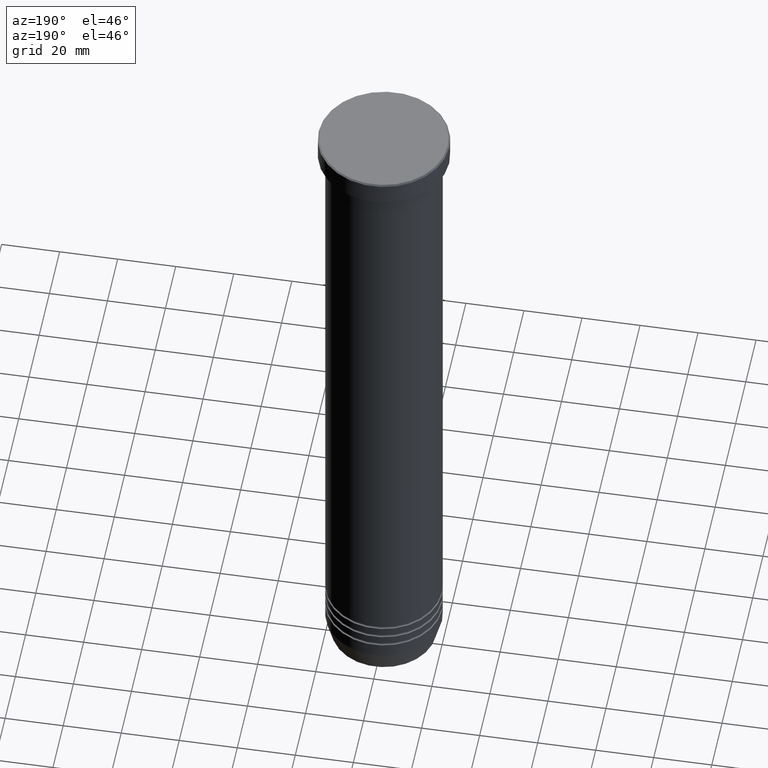
[diagram: clean part render]
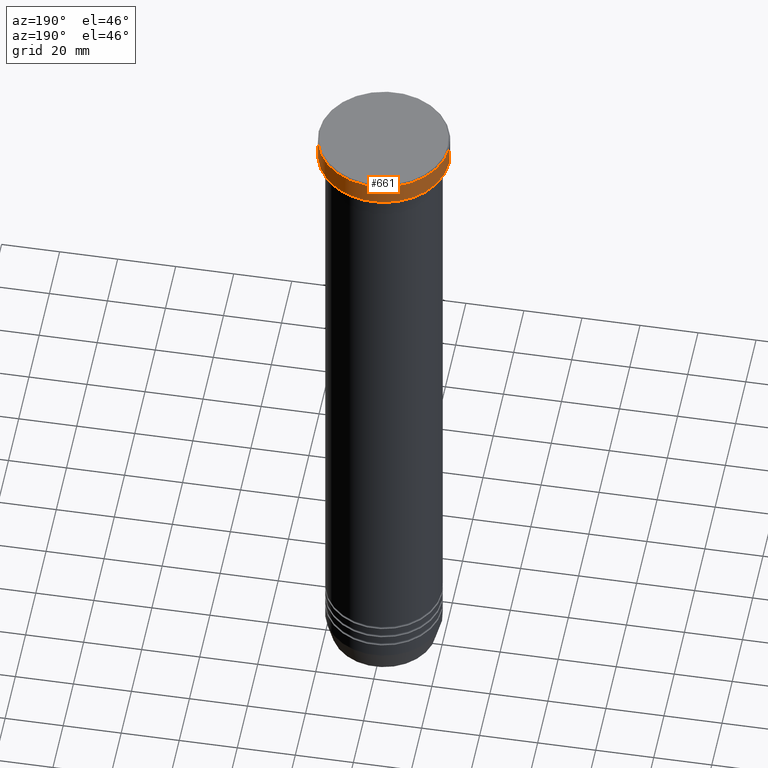
[diagram: same view with one face highlighted and labeled with its STEP entity id]
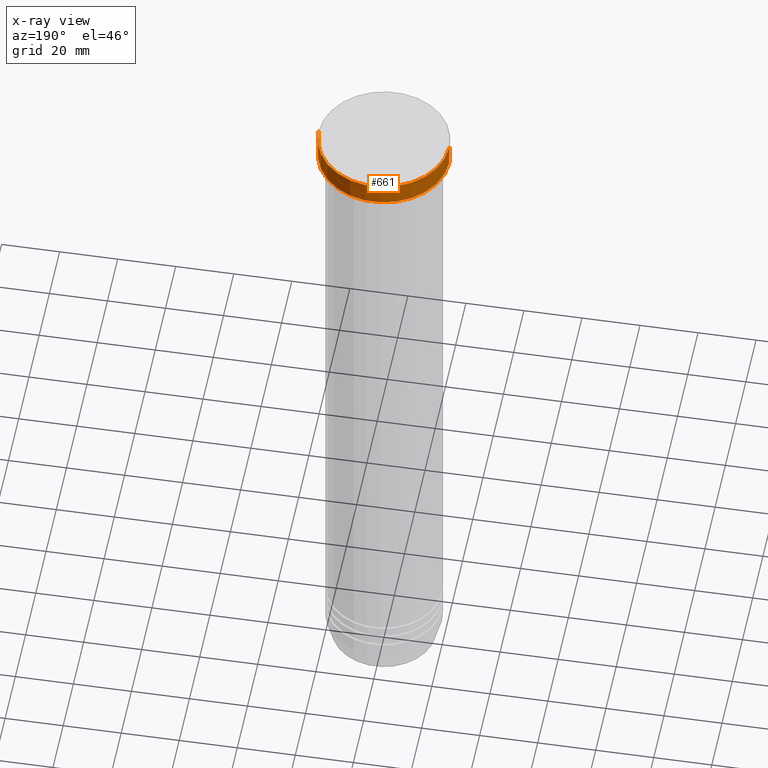
[diagram: x-ray of the same camera — body ghosted, the highlighted face saturated]
A machine part, auxiliary view. The second image highlights one B-rep face of the part: STEP entity #661.
The next image is the same camera in x-ray: the body ghosted, the highlighted face saturated — about 0% of this face is hidden behind the body in this view.
In plain terms, the highlighted cylindrical surface (partial cylindrical patch) has radius 22.5 mm, axis along (-0, -0, 1).
Its self-contained STEP definition (entity closure, byte-faithful):
#17 = ORIENTED_EDGE ( 'NONE', *, *, #627, .T. ) ;
#26 = CIRCLE ( 'NONE', #1058, 22.50000000000000000 ) ;
#33 = ORIENTED_EDGE ( 'NONE', *, *, #365, .F. ) ;
#120 = VERTEX_POINT ( 'NONE', #663 ) ;
#128 = DIRECTION ( 'NONE',  ( -0.000000000000000000, -0.000000000000000000, 1.000000000000000000 ) ) ;
#149 = DIRECTION ( 'NONE',  ( -0.000000000000000000, -0.000000000000000000, 1.000000000000000000 ) ) ;
#152 = EDGE_LOOP ( 'NONE', ( #722, #589, #17, #33 ) ) ;
#195 = LINE ( 'NONE', #291, #944 ) ;
#215 = CARTESIAN_POINT ( 'NONE',  ( -22.50000000000000000, 2.755455298081544778E-15, 0.000000000000000000 ) ) ;
#217 = CARTESIAN_POINT ( 'NONE',  ( 0.000000000000000000, 0.000000000000000000, 0.000000000000000000 ) ) ;
#224 = CARTESIAN_POINT ( 'NONE',  ( 22.50000000000000000, 0.000000000000000000, -7.999999999999998224 ) ) ;
#232 = EDGE_CURVE ( 'NONE', #723, #120, #484, .T. ) ;
#248 = VERTEX_POINT ( 'NONE', #925 ) ;
#272 = DIRECTION ( 'NONE',  ( 1.000000000000000000, 0.000000000000000000, 0.000000000000000000 ) ) ;
#291 = CARTESIAN_POINT ( 'NONE',  ( 22.50000000000000000, 0.000000000000000000, 0.000000000000000000 ) ) ;
#357 = VERTEX_POINT ( 'NONE', #599 ) ;
#365 = EDGE_CURVE ( 'NONE', #723, #357, #195, .T. ) ;
#368 = LINE ( 'NONE', #215, #370 ) ;
#370 = VECTOR ( 'NONE', #128, 1000.000000000000000 ) ;
#484 = CIRCLE ( 'NONE', #798, 22.50000000000000000 ) ;
#507 = DIRECTION ( 'NONE',  ( 0.000000000000000000, 0.000000000000000000, -1.000000000000000000 ) ) ;
#529 = EDGE_CURVE ( 'NONE', #120, #248, #368, .T. ) ;
#544 = DIRECTION ( 'NONE',  ( 1.000000000000000000, 0.000000000000000000, 0.000000000000000000 ) ) ;
#570 = CARTESIAN_POINT ( 'NONE',  ( 0.000000000000000000, 0.000000000000000000, -7.999999999999998224 ) ) ;
#589 = ORIENTED_EDGE ( 'NONE', *, *, #529, .T. ) ;
#592 = CARTESIAN_POINT ( 'NONE',  ( 0.000000000000000000, 0.000000000000000000, -0.5000000000000004441 ) ) ;
#599 = CARTESIAN_POINT ( 'NONE',  ( 22.50000000000000000, 0.000000000000000000, -0.5000000000000004441 ) ) ;
#623 = CYLINDRICAL_SURFACE ( 'NONE', #990, 22.50000000000000000 ) ;
#627 = EDGE_CURVE ( 'NONE', #248, #357, #26, .T. ) ;
#661 = ADVANCED_FACE ( 'NONE', ( #789 ), #623, .T. ) ;
#663 = CARTESIAN_POINT ( 'NONE',  ( -22.50000000000000000, 2.755455298081544778E-15, -7.999999999999998224 ) ) ;
#706 = DIRECTION ( 'NONE',  ( -0.000000000000000000, -0.000000000000000000, 1.000000000000000000 ) ) ;
#722 = ORIENTED_EDGE ( 'NONE', *, *, #232, .T. ) ;
#723 = VERTEX_POINT ( 'NONE', #224 ) ;
#789 = FACE_OUTER_BOUND ( 'NONE', #152, .T. ) ;
#798 = AXIS2_PLACEMENT_3D ( 'NONE', #570, #149, #999 ) ;
#925 = CARTESIAN_POINT ( 'NONE',  ( -22.50000000000000000, 2.755455298081544778E-15, -0.5000000000000004441 ) ) ;
#939 = DIRECTION ( 'NONE',  ( -0.000000000000000000, -0.000000000000000000, 1.000000000000000000 ) ) ;
#944 = VECTOR ( 'NONE', #939, 1000.000000000000000 ) ;
#990 = AXIS2_PLACEMENT_3D ( 'NONE', #217, #706, #544 ) ;
#999 = DIRECTION ( 'NONE',  ( 1.000000000000000000, 0.000000000000000000, 0.000000000000000000 ) ) ;
#1058 = AXIS2_PLACEMENT_3D ( 'NONE', #592, #507, #272 ) ;